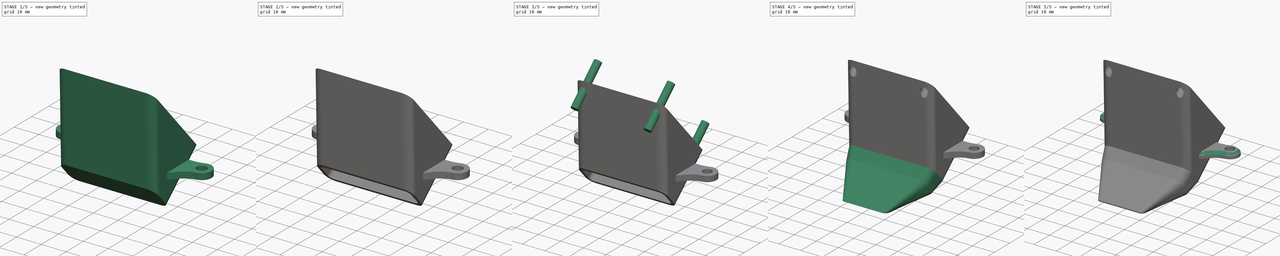
[diagram: build sequence overview — one tinted view per stage of 5, left to right]
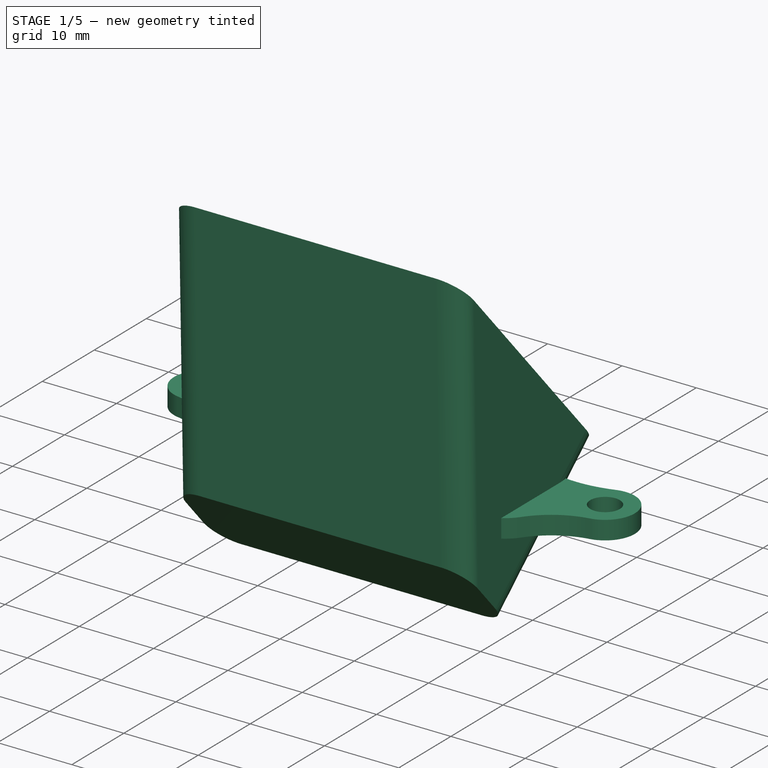
[diagram: stage 1 of 5 — iso view after this stage's code; geometry added in this stage tinted green]
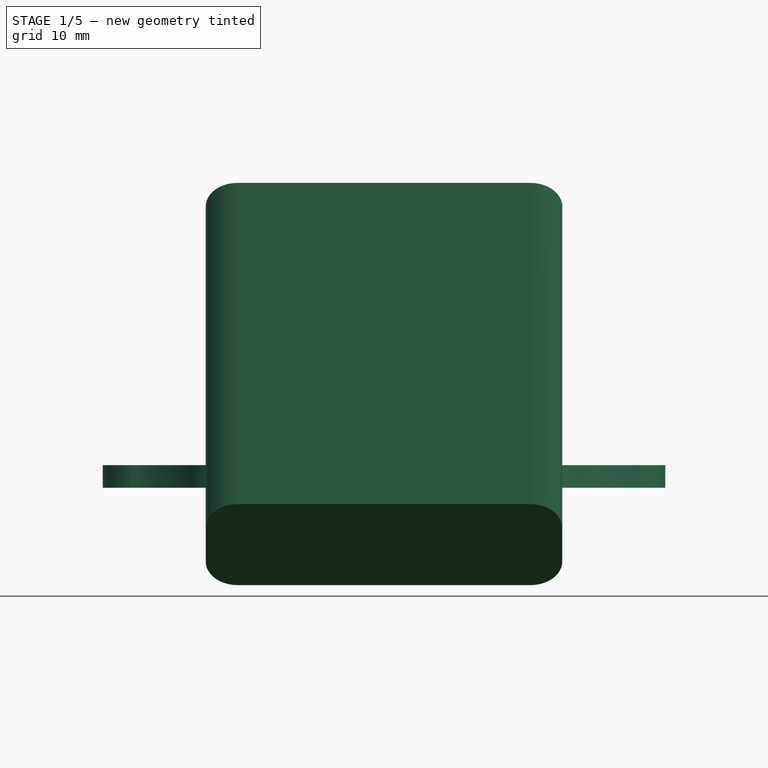
[diagram: stage 1 of 5 — front view after this stage's code; geometry added in this stage tinted green]
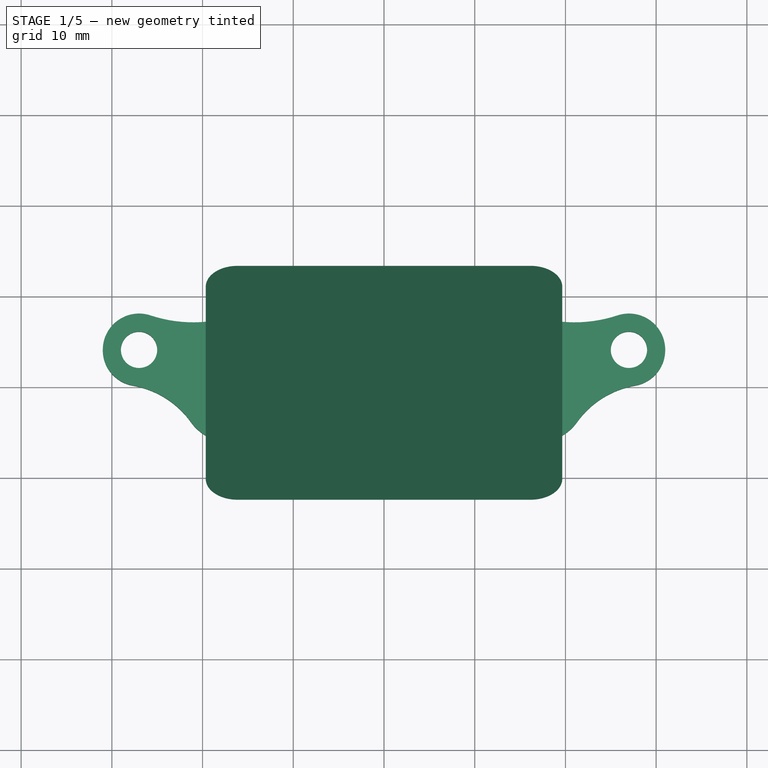
[diagram: stage 1 of 5 — top view after this stage's code; geometry added in this stage tinted green]
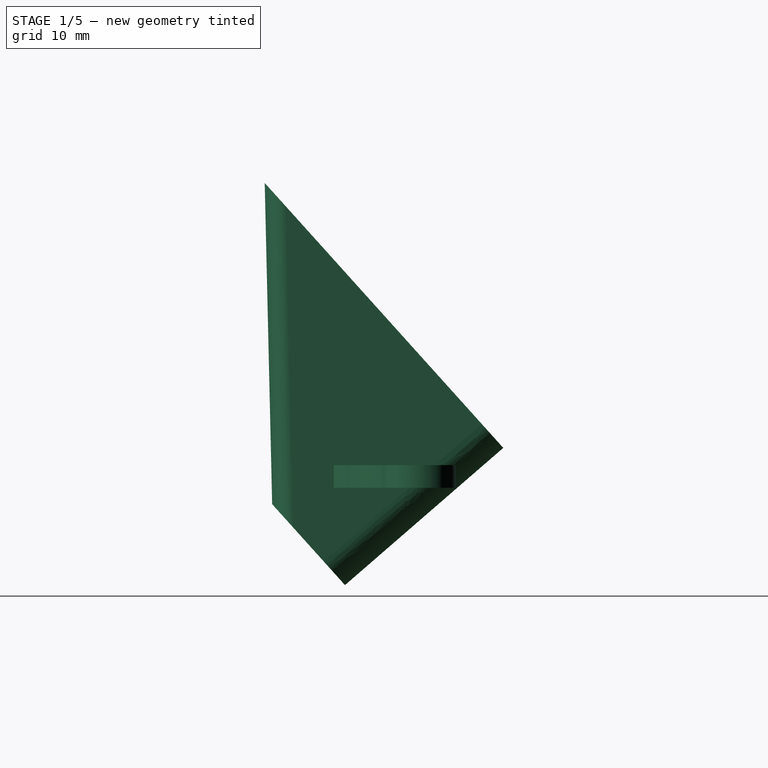
[diagram: stage 1 of 5 — right view after this stage's code; geometry added in this stage tinted green]
FCSTD DOCUMENT  (FreeCAD 0.15R4671 (Git))
Label: FanDuct
License: All rights reserved
LicenseURL: http://en.wikipedia.org/wiki/All_rights_reserved
objects: Sketcher::SketchObject×16, Part::Loft×5, PartDesign::Pad×4, Part::MultiFuse×4, Part::Cut×3, PartDesign::Chamfer×2, Part::MultiCommon×1, PartDesign::Fillet×1
note: 40 computed .brp shape members not serialized (recipe doc carries the construction recipe); baked Part::Feature solids carry a one-line shape summary decoded from their .brp

FEATURE [Sketcher::SketchObject] Sketch001
  Placement = pos=(0,0,74.5) rot=(-1,0,0;0.837758rad)
  sketch-geometry (5):
    g0: LineSegment [constr] StartX=16.15 StartY=16.15 StartZ=0 EndX=-16.15 EndY=16.15 EndZ=0
    g1: ArcOfCircle CenterX=-16.15 CenterY=16.15 CenterZ=0 NormalX=0 NormalY=0 NormalZ=1 Radius=3.4 StartAngle=4.03117 EndAngle=6.96441
    g2: ArcOfCircle CenterX=-15.65 CenterY=15.65 CenterZ=0 NormalX=0 NormalY=0 NormalZ=1 Radius=3.4 StartAngle=0.889573 EndAngle=3.82282
    g3: ArcOfCircle CenterX=16.15 CenterY=16.15 CenterZ=0 NormalX=0 NormalY=0 NormalZ=1 Radius=3.4 StartAngle=2.46037 EndAngle=5.39361
    g4: ArcOfCircle CenterX=15.65 CenterY=15.65 CenterZ=0 NormalX=0 NormalY=0 NormalZ=1 Radius=3.4 StartAngle=5.60196 EndAngle=8.53521
  constraints (18):
    c: Horizontal(g0)
    c: DistanceX(g0) = -32.3
    c: DistanceX(g-1,g0) = -16.15
    c: DistanceY(g-1,g0) = 16.15
    c: Coincident(g1,g0)
    c: Coincident(g2,g1)
    c: Coincident(g2,g1)
    c: Coincident(g3,g0)
    c: Coincident(g4,g3)
    c: Coincident(g4,g3)
    c: DistanceY(g2,g0) = 0.5
    c: DistanceX(g0,g2) = 0.5
    c: DistanceX(g4,g0) = 0.5
    c: DistanceY(g4,g0) = 0.5
    c: Equal(g2,g1)
    c: Equal(g1,g3)
    c: Equal(g3,g4)
    c: Radius(g1) = 3.4
FEATURE [Sketcher::SketchObject] Sketch002
  Placement = pos=(0,0,74.5) rot=(-1,0,0;0.837758rad)
  sketch-geometry (12):
    g0: LineSegment StartX=-16.15 StartY=19.65 StartZ=0 EndX=16.15 EndY=19.65 EndZ=0
    g1: LineSegment StartX=19.65 StartY=16.15 StartZ=0 EndX=19.65 EndY=-16.15 EndZ=0
    g2: LineSegment StartX=16.15 StartY=-19.65 StartZ=0 EndX=-16.15 EndY=-19.65 EndZ=0
    g3: LineSegment StartX=-19.65 StartY=-16.15 StartZ=0 EndX=-19.65 EndY=16.15 EndZ=0
    g4: ArcOfCircle CenterX=-16.15 CenterY=16.15 CenterZ=0 NormalX=0 NormalY=0 NormalZ=1 Radius=3.5 StartAngle=1.5708 EndAngle=3.14159
    g5: ArcOfCircle CenterX=-16.15 CenterY=-16.15 CenterZ=0 NormalX=0 NormalY=0 NormalZ=1 Radius=3.5 StartAngle=3.14159 EndAngle=4.71239
    g6: ArcOfCircle CenterX=16.15 CenterY=-16.15 CenterZ=0 NormalX=0 NormalY=0 NormalZ=1 Radius=3.5 StartAngle=4.71239 EndAngle=6.28319
    g7: ArcOfCircle CenterX=16.15 CenterY=16.15 CenterZ=0 NormalX=0 NormalY=0 NormalZ=1 Radius=3.5 StartAngle=0 EndAngle=1.5708
    g8: LineSegment [constr] StartX=-16.15 StartY=-16.15 StartZ=0 EndX=16.15 EndY=-16.15 EndZ=0
    g9: LineSegment [constr] StartX=16.15 StartY=-16.15 StartZ=0 EndX=16.15 EndY=16.15 EndZ=0
    g10: LineSegment [constr] StartX=16.15 StartY=16.15 StartZ=0 EndX=-16.15 EndY=16.15 EndZ=0
    g11: LineSegment [constr] StartX=-16.15 StartY=16.15 StartZ=0 EndX=-16.15 EndY=-16.15 EndZ=0
  constraints (30):
    c: Horizontal(g0)
    c: Horizontal(g2)
    c: Vertical(g1)
    c: Vertical(g3)
    c: Tangent(g0,g4) = 1.5708
    c: Tangent(g3,g4) = 1.5708
    c: Tangent(g2,g5) = 1.5708
    c: Tangent(g3,g5) = 1.5708
    c: Tangent(g2,g6) = 1.5708
    c: Tangent(g1,g6) = 1.5708
    c: Tangent(g1,g7) = 1.5708
    c: Tangent(g0,g7) = 1.5708
    c: Radius(g4) = 3.5
    c: Radius(g6) = 3.5
    c: Radius(g5) = 3.5
    c: Radius(g7) = 3.5
    c: DistanceY(g4,g5) = -32.3
    c: DistanceX(g4,g7) = 32.3
    c: Coincident(g8,g9)
    c: Coincident(g9,g10)
    c: Coincident(g10,g11)
    c: Coincident(g11,g8)
    c: Horizontal(g8)
    c: Horizontal(g10)
    c: Vertical(g9)
    c: Vertical(g11)
    c: Coincident(g8,g5)
    c: Coincident(g9,g7)
    c: DistanceX(g-1,g4) = -16.15
    c: DistanceY(g-1,g4) = 16.15
FEATURE [Sketcher::SketchObject] Sketch003
  Placement = pos=(0,0,40) rot=(-1,0,0;0.837758rad)
  sketch-geometry (12):
    g0: LineSegment StartX=-16.15 StartY=-6.425 StartZ=0 EndX=16.15 EndY=-6.425 EndZ=0
    g1: LineSegment StartX=19.65 StartY=-9.925 StartZ=0 EndX=19.65 EndY=-14.925 EndZ=0
    g2: LineSegment StartX=16.15 StartY=-18.425 StartZ=0 EndX=-16.15 EndY=-18.425 EndZ=0
    g3: LineSegment StartX=-19.65 StartY=-14.925 StartZ=0 EndX=-19.65 EndY=-9.925 EndZ=0
    g4: ArcOfCircle CenterX=-16.15 CenterY=-9.925 CenterZ=0 NormalX=0 NormalY=0 NormalZ=1 Radius=3.5 StartAngle=1.5708 EndAngle=3.14159
    g5: ArcOfCircle CenterX=-16.15 CenterY=-14.925 CenterZ=0 NormalX=0 NormalY=0 NormalZ=1 Radius=3.5 StartAngle=3.14159 EndAngle=4.71239
    g6: ArcOfCircle CenterX=16.15 CenterY=-14.925 CenterZ=0 NormalX=0 NormalY=0 NormalZ=1 Radius=3.5 StartAngle=4.71239 EndAngle=6.28319
    g7: ArcOfCircle CenterX=16.15 CenterY=-9.925 CenterZ=0 NormalX=0 NormalY=0 NormalZ=1 Radius=3.5 StartAngle=0 EndAngle=1.5708
    g8: LineSegment [constr] StartX=-16.15 StartY=-14.925 StartZ=0 EndX=16.15 EndY=-14.925 EndZ=0
    g9: LineSegment [constr] StartX=16.15 StartY=-14.925 StartZ=0 EndX=16.15 EndY=-9.925 EndZ=0
    g10: LineSegment [constr] StartX=16.15 StartY=-9.925 StartZ=0 EndX=-16.15 EndY=-9.925 EndZ=0
    g11: LineSegment [constr] StartX=-16.15 StartY=-9.925 StartZ=0 EndX=-16.15 EndY=-14.925 EndZ=0
  constraints (30):
    c: Horizontal(g0)
    c: Horizontal(g2)
    c: Vertical(g1)
    c: Vertical(g3)
    c: Tangent(g0,g4) = 1.5708
    c: Tangent(g3,g4) = 1.5708
    c: Tangent(g2,g5) = 1.5708
    c: Tangent(g3,g5) = 1.5708
    c: Tangent(g2,g6) = 1.5708
    c: Tangent(g1,g6) = 1.5708
    c: Tangent(g1,g7) = 1.5708
    c: Tangent(g0,g7) = 1.5708
    c: Radius(g4) = 3.5
    c: Radius(g6) = 3.5
    c: Radius(g5) = 3.5
    c: Radius(g7) = 3.5
    c: DistanceY(g4,g5) = -5
    c: DistanceX(g4,g7) = 32.3
    c: Coincident(g8,g9)
    c: Coincident(g9,g10)
    c: Coincident(g10,g11)
    c: Coincident(g11,g8)
    c: Horizontal(g8)
    c: Horizontal(g10)
    c: Vertical(g9)
    c: Vertical(g11)
    c: Coincident(g8,g5)
    c: Coincident(g9,g7)
    c: DistanceX(g-1,g5) = -16.15
    c: DistanceY(g-1,g4) = -9.925
FEATURE [Part::Loft] Loft  label="OuterOfDuct"
  Closed = false
  Ruled = true
  Sections = -> [Sketch002,Sketch003]
  Solid = true
FEATURE [Sketcher::SketchObject] Sketch004
  Placement = pos=(0,0,74.5) rot=(-1,0,0;0.837758rad)
  sketch-geometry (12):
    g0: LineSegment StartX=-16.15 StartY=18.15 StartZ=0 EndX=16.15 EndY=18.15 EndZ=0
    g1: LineSegment StartX=18.15 StartY=16.15 StartZ=0 EndX=18.15 EndY=-16.15 EndZ=0
    g2: LineSegment StartX=16.15 StartY=-18.15 StartZ=0 EndX=-16.15 EndY=-18.15 EndZ=0
    g3: LineSegment StartX=-18.15 StartY=-16.15 StartZ=0 EndX=-18.15 EndY=16.15 EndZ=0
    g4: ArcOfCircle CenterX=-16.15 CenterY=16.15 CenterZ=0 NormalX=0 NormalY=0 NormalZ=1 Radius=2 StartAngle=1.5708 EndAngle=3.14159
    g5: ArcOfCircle CenterX=-16.15 CenterY=-16.15 CenterZ=0 NormalX=0 NormalY=0 NormalZ=1 Radius=2 StartAngle=3.14159 EndAngle=4.71239
    g6: ArcOfCircle CenterX=16.15 CenterY=-16.15 CenterZ=0 NormalX=0 NormalY=0 NormalZ=1 Radius=2 StartAngle=4.71239 EndAngle=6.28319
    g7: ArcOfCircle CenterX=16.15 CenterY=16.15 CenterZ=0 NormalX=0 NormalY=0 NormalZ=1 Radius=2 StartAngle=0 EndAngle=1.5708
    g8: LineSegment [constr] StartX=-16.15 StartY=-16.15 StartZ=0 EndX=16.15 EndY=-16.15 EndZ=0
    g9: LineSegment [constr] StartX=16.15 StartY=-16.15 StartZ=0 EndX=16.15 EndY=16.15 EndZ=0
    g10: LineSegment [constr] StartX=16.15 StartY=16.15 StartZ=0 EndX=-16.15 EndY=16.15 EndZ=0
    g11: LineSegment [constr] StartX=-16.15 StartY=16.15 StartZ=0 EndX=-16.15 EndY=-16.15 EndZ=0
  constraints (29):
    c: Horizontal(g0)
    c: Horizontal(g2)
    c: Vertical(g1)
    c: Vertical(g3)
    c: Tangent(g0,g4) = 1.5708
    c: Tangent(g3,g4) = 1.5708
    c: Tangent(g2,g5) = 1.5708
    c: Tangent(g3,g5) = 1.5708
    c: Tangent(g2,g6) = 1.5708
    c: Tangent(g1,g6) = 1.5708
    c: Tangent(g1,g7) = 1.5708
    c: Tangent(g0,g7) = 1.5708
    c: Radius(g4) = 2
    c: DistanceY(g4,g5) = -32.3
    c: DistanceX(g4,g7) = 32.3
    c: Coincident(g8,g9)
    c: Coincident(g9,g10)
    c: Coincident(g10,g11)
    c: Coincident(g11,g8)
    c: Horizontal(g8)
    c: Horizontal(g10)
    c: Vertical(g9)
    c: Vertical(g11)
    c: Coincident(g8,g5)
    c: Coincident(g9,g7)
    c: Equal(g5,g6)
    c: Coincident(g10,g4)
    c: DistanceX(g-1,g5) = -16.15
    c: DistanceY(g-1,g4) = 16.15
FEATURE [Sketcher::SketchObject] Sketch005
  Placement = pos=(0,0,40) rot=(-1,0,0;0.837758rad)
  sketch-geometry (12):
    g0: LineSegment StartX=-16.15 StartY=-7.925 StartZ=0 EndX=16.15 EndY=-7.925 EndZ=0
    g1: LineSegment StartX=18.15 StartY=-9.925 StartZ=0 EndX=18.15 EndY=-14.925 EndZ=0
    g2: LineSegment StartX=16.15 StartY=-16.925 StartZ=0 EndX=-16.15 EndY=-16.925 EndZ=0
    g3: LineSegment StartX=-18.15 StartY=-14.925 StartZ=0 EndX=-18.15 EndY=-9.925 EndZ=0
    g4: ArcOfCircle CenterX=-16.15 CenterY=-9.925 CenterZ=0 NormalX=0 NormalY=0 NormalZ=1 Radius=2 StartAngle=1.5708 EndAngle=3.14159
    g5: ArcOfCircle CenterX=-16.15 CenterY=-14.925 CenterZ=0 NormalX=0 NormalY=0 NormalZ=1 Radius=2 StartAngle=3.14159 EndAngle=4.71239
    g6: ArcOfCircle CenterX=16.15 CenterY=-14.925 CenterZ=0 NormalX=0 NormalY=0 NormalZ=1 Radius=2 StartAngle=4.71239 EndAngle=6.28319
    g7: ArcOfCircle CenterX=16.15 CenterY=-9.925 CenterZ=0 NormalX=0 NormalY=0 NormalZ=1 Radius=2 StartAngle=0 EndAngle=1.5708
    g8: LineSegment [constr] StartX=-16.15 StartY=-9.925 StartZ=0 EndX=16.15 EndY=-9.925 EndZ=0
    g9: LineSegment [constr] StartX=16.15 StartY=-9.925 StartZ=0 EndX=16.15 EndY=-14.925 EndZ=0
    g10: LineSegment [constr] StartX=16.15 StartY=-14.925 StartZ=0 EndX=-16.15 EndY=-14.925 EndZ=0
    g11: LineSegment [constr] StartX=-16.15 StartY=-14.925 StartZ=0 EndX=-16.15 EndY=-9.925 EndZ=0
  constraints (30):
    c: Horizontal(g0)
    c: Horizontal(g2)
    c: Vertical(g1)
    c: Vertical(g3)
    c: Tangent(g0,g4) = 1.5708
    c: Tangent(g3,g4) = 1.5708
    c: Tangent(g2,g5) = 1.5708
    c: Tangent(g3,g5) = 1.5708
    c: Tangent(g2,g6) = 1.5708
    c: Tangent(g1,g6) = 1.5708
    c: Tangent(g1,g7) = 1.5708
    c: Tangent(g0,g7) = 1.5708
    c: Radius(g4) = 2
    c: DistanceY(g4,g5) = -5
    c: DistanceX(g4,g7) = 32.3
    c: Equal(g5,g4)
    c: Equal(g6,g7)
    c: Equal(g5,g6)
    c: Coincident(g8,g9)
    c: Coincident(g9,g10)
    c: Coincident(g10,g11)
    c: Coincident(g11,g8)
    c: Horizontal(g8)
    c: Horizontal(g10)
    c: Vertical(g9)
    c: Vertical(g11)
    c: Coincident(g4,g8)
    c: Coincident(g9,g6)
    c: DistanceY(g-1,g4) = -9.925
    c: DistanceX(g-1,g5) = -16.15
FEATURE [Part::Loft] Loft001  label="InnerOfDuct"
  Closed = false
  Ruled = true
  Sections = -> [Sketch004,Sketch005]
  Solid = true
FEATURE [Sketcher::SketchObject] Sketch
  Placement = pos=(0,0,55.5) rot=(0,0,1;0rad)
  sketch-geometry (12):
    g0: Circle CenterX=-27 CenterY=3.925 CenterZ=0 NormalX=0 NormalY=0 NormalZ=1 Radius=2
    g1: ArcOfCircle CenterX=-17 CenterY=-1 CenterZ=0 NormalX=0 NormalY=0 NormalZ=1 Radius=5.25 StartAngle=3.76205 EndAngle=4.71239
    g2: ArcOfCircle CenterX=-29.4076 CenterY=-9.86642 CenterZ=0 NormalX=0 NormalY=0 NormalZ=1 Radius=10 StartAngle=0.620454 EndAngle=1.39796
    g3: ArcOfCircle CenterX=-27 CenterY=3.925 CenterZ=0 NormalX=0 NormalY=0 NormalZ=1 Radius=4 StartAngle=1.24988 EndAngle=4.53956
    g4: LineSegment StartX=-17 StartY=-6.25 StartZ=0 EndX=-17 EndY=7.5 EndZ=0
    g5: ArcOfCircle CenterX=-21.0067 CenterY=21.955 CenterZ=0 NormalX=0 NormalY=0 NormalZ=1 Radius=15 StartAngle=4.39147 EndAngle=4.98278
    g6: Circle CenterX=27 CenterY=3.925 CenterZ=0 NormalX=0 NormalY=0 NormalZ=1 Radius=2
    g7: ArcOfCircle CenterX=27 CenterY=3.925 CenterZ=0 NormalX=0 NormalY=0 NormalZ=1 Radius=4 StartAngle=4.88522 EndAngle=8.1749
    g8: LineSegment StartX=17 StartY=-6.25 StartZ=0 EndX=17 EndY=7.5 EndZ=0
    g9: ArcOfCircle CenterX=17 CenterY=-1 CenterZ=0 NormalX=0 NormalY=0 NormalZ=1 Radius=5.25 StartAngle=4.71239 EndAngle=5.66273
    g10: ArcOfCircle CenterX=29.4076 CenterY=-9.86642 CenterZ=0 NormalX=0 NormalY=0 NormalZ=1 Radius=10 StartAngle=1.74363 EndAngle=2.52114
    g11: ArcOfCircle CenterX=21.0067 CenterY=21.955 CenterZ=0 NormalX=0 NormalY=0 NormalZ=1 Radius=15 StartAngle=4.44199 EndAngle=5.03331
  constraints (42):
    c: Radius(g0) = 2
    c: DistanceX(g-1,g0) = -27
    c: DistanceY(g-1,g0) = 3.925
    c: Coincident(g2,g1)
    c: Coincident(g3,g0)
    c: Coincident(g3,g2)
    c: Radius(g3) = 4
    c: DistanceX(g-1,g1) = -17
    c: DistanceY(g-1,g1) = -1
    c: Radius(g1) = 5.25
    c: Radius(g2) = 10
    c: Coincident(g4,g1)
    c: Vertical(g4)
    c: PointOnObject(g1,g4)
    c: Coincident(g5,g3)
    c: Coincident(g5,g4)
    c: Tangent(g2,g3)
    c: Tangent(g1,g2)
    c: Tangent(g5,g3)
    c: DistanceY(g-1,g4) = 7.5
    c: Radius(g5) = 15
    c: Coincident(g7,g6)
    c: Vertical(g8)
    c: PointOnObject(g9,g8)
    c: Coincident(g9,g8)
    c: Coincident(g10,g9)
    c: Coincident(g10,g7)
    c: Coincident(g11,g8)
    c: Coincident(g11,g7)
    c: Equal(g3,g7)
    c: Equal(g0,g6)
    c: Equal(g9,g1)
    c: Equal(g10,g2)
    c: Equal(g11,g5)
    c: Tangent(g11,g7)
    c: Tangent(g10,g7)
    c: Tangent(g9,g10)
    c: DistanceX(g-1,g8) = 17
    c: DistanceY(g-1,g9) = -1
    c: DistanceY(g-1,g6) = 3.925
    c: DistanceX(g-1,g6) = 27
    c: DistanceY(g-1,g8) = 7.5
FEATURE [PartDesign::Pad] Pad001  label="EffectorConnection"
  Length = 2.5
  Length2 = 100
  Placement = pos=(0,0,55.5) rot=(0,0,1;0rad)
  Sketch = -> Sketch
  Type = 0
FEATURE [Part::MultiFuse] Fusion  label="OuterAndEffector"
  Shapes = -> [Pad001,Loft]
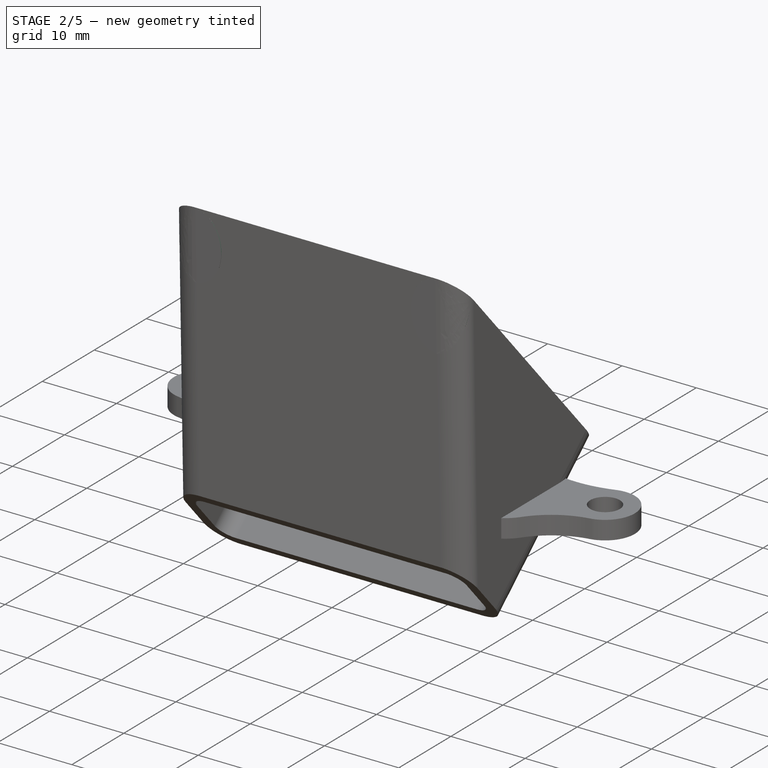
[diagram: stage 2 of 5 — iso view after this stage's code; geometry added in this stage tinted green]
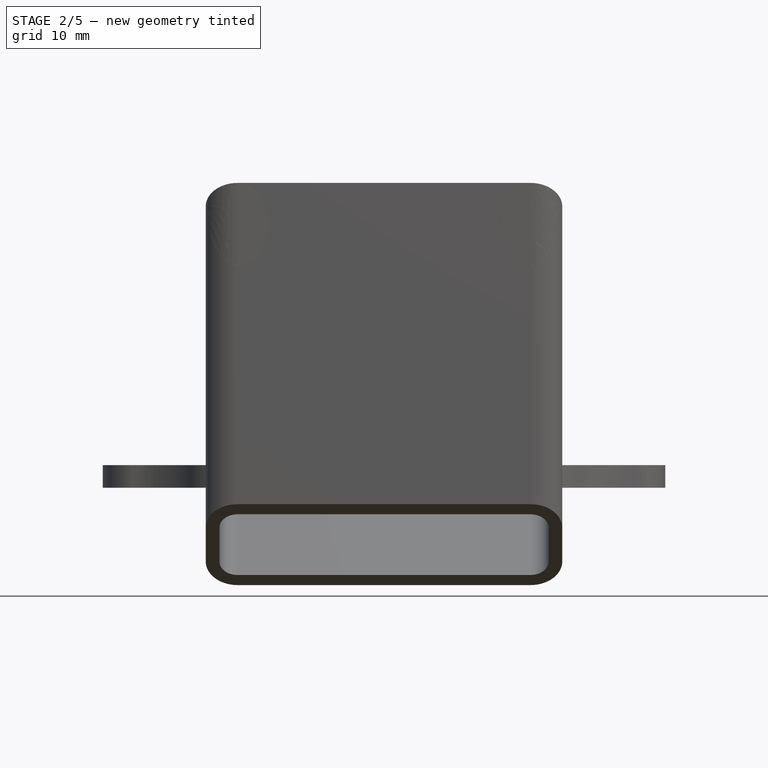
[diagram: stage 2 of 5 — front view after this stage's code; geometry added in this stage tinted green]
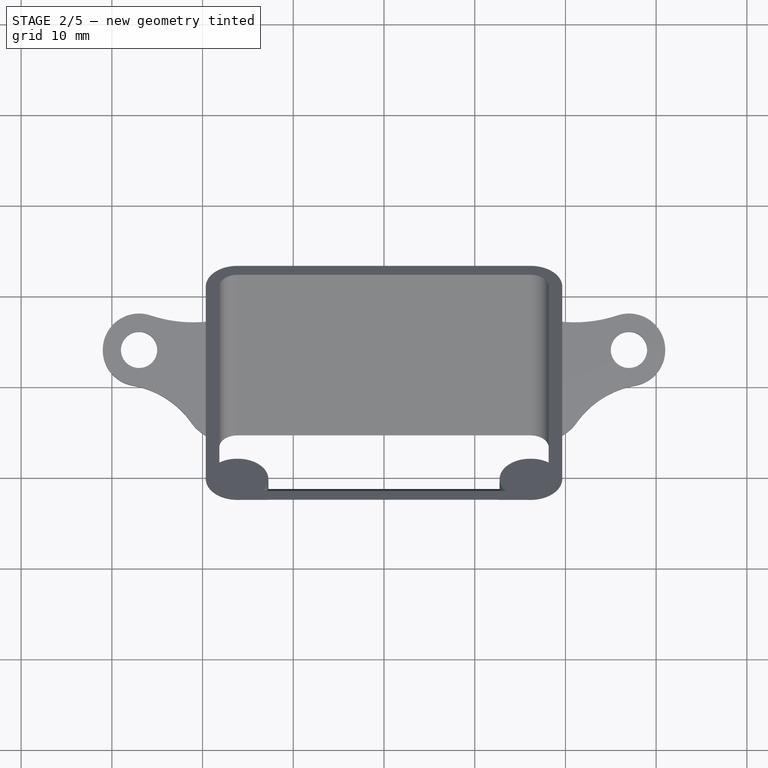
[diagram: stage 2 of 5 — top view after this stage's code; geometry added in this stage tinted green]
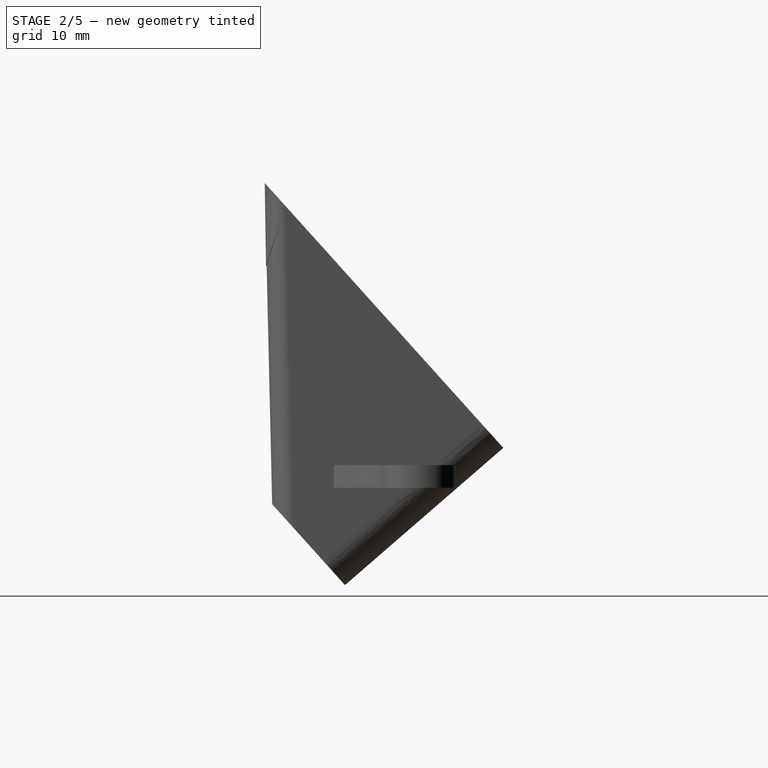
[diagram: stage 2 of 5 — right view after this stage's code; geometry added in this stage tinted green]
FEATURE [Sketcher::SketchObject] Sketch006
  Placement = pos=(0,0,74.5) rot=(-1,0,0;0.837758rad)
  sketch-geometry (3):
    g0: Circle CenterX=-16.15 CenterY=-16.15 CenterZ=0 NormalX=0 NormalY=0 NormalZ=1 Radius=3.4
    g1: Circle CenterX=16.15 CenterY=-16.15 CenterZ=0 NormalX=0 NormalY=0 NormalZ=1 Radius=3.4
    g2: LineSegment [constr] StartX=16.15 StartY=-16.15 StartZ=0 EndX=-16.15 EndY=-16.15 EndZ=0
  constraints (8):
    c: Radius(g0) = 3.4
    c: Horizontal(g2)
    c: Coincident(g2,g0)
    c: Equal(g1,g0)
    c: DistanceX(g2) = -32.3
    c: DistanceX(g-1,g0) = -16.15
    c: Coincident(g1,g2)
    c: DistanceY(g-1,g0) = -16.15
FEATURE [PartDesign::Pad] Pad002  label="AngledFanPadsConstruction"
  Length = 10
  Length2 = 100
  Placement = pos=(0,0,74.5) rot=(-1,0,0;0.837758rad)
  Reversed = true
  Sketch = -> Sketch006
  Type = 0
FEATURE [Sketcher::SketchObject] Sketch016
  Placement = pos=(0,0,74.5) rot=(-1,0,0;0.837758rad)
  sketch-geometry (12):
    g0: LineSegment StartX=-16.15 StartY=19.65 StartZ=0 EndX=16.15 EndY=19.65 EndZ=0
    g1: LineSegment StartX=19.65 StartY=16.15 StartZ=0 EndX=19.65 EndY=-16.15 EndZ=0
    g2: LineSegment StartX=16.15 StartY=-19.65 StartZ=0 EndX=-16.15 EndY=-19.65 EndZ=0
    g3: LineSegment StartX=-19.65 StartY=-16.15 StartZ=0 EndX=-19.65 EndY=16.15 EndZ=0
    g4: ArcOfCircle CenterX=-16.15 CenterY=16.15 CenterZ=0 NormalX=0 NormalY=0 NormalZ=1 Radius=3.5 StartAngle=1.5708 EndAngle=3.14159
    g5: ArcOfCircle CenterX=-16.15 CenterY=-16.15 CenterZ=0 NormalX=0 NormalY=0 NormalZ=1 Radius=3.5 StartAngle=3.14159 EndAngle=4.71239
    g6: ArcOfCircle CenterX=16.15 CenterY=-16.15 CenterZ=0 NormalX=0 NormalY=0 NormalZ=1 Radius=3.5 StartAngle=4.71239 EndAngle=6.28319
    g7: ArcOfCircle CenterX=16.15 CenterY=16.15 CenterZ=0 NormalX=0 NormalY=0 NormalZ=1 Radius=3.5 StartAngle=0 EndAngle=1.5708
    g8: LineSegment [constr] StartX=-16.15 StartY=-16.15 StartZ=0 EndX=16.15 EndY=-16.15 EndZ=0
    g9: LineSegment [constr] StartX=16.15 StartY=-16.15 StartZ=0 EndX=16.15 EndY=16.15 EndZ=0
    g10: LineSegment [constr] StartX=16.15 StartY=16.15 StartZ=0 EndX=-16.15 EndY=16.15 EndZ=0
    g11: LineSegment [constr] StartX=-16.15 StartY=16.15 StartZ=0 EndX=-16.15 EndY=-16.15 EndZ=0
  constraints (30):
    c: Horizontal(g0)
    c: Horizontal(g2)
    c: Vertical(g1)
    c: Vertical(g3)
    c: Tangent(g0,g4) = 1.5708
    c: Tangent(g3,g4) = 1.5708
    c: Tangent(g2,g5) = 1.5708
    c: Tangent(g3,g5) = 1.5708
    c: Tangent(g2,g6) = 1.5708
    c: Tangent(g1,g6) = 1.5708
    c: Tangent(g1,g7) = 1.5708
    c: Tangent(g0,g7) = 1.5708
    c: Radius(g4) = 3.5
    c: Radius(g6) = 3.5
    c: Radius(g5) = 3.5
    c: Radius(g7) = 3.5
    c: DistanceY(g4,g5) = -32.3
    c: DistanceX(g4,g7) = 32.3
    c: Coincident(g8,g9)
    c: Coincident(g9,g10)
    c: Coincident(g10,g11)
    c: Coincident(g11,g8)
    c: Horizontal(g8)
    c: Horizontal(g10)
    c: Vertical(g9)
    c: Vertical(g11)
    c: Coincident(g8,g5)
    c: Coincident(g9,g7)
    c: DistanceX(g-1,g4) = -16.15
    c: DistanceY(g-1,g4) = 16.15
FEATURE [Sketcher::SketchObject] Sketch017
  Placement = pos=(0,0,40) rot=(-1,0,0;0.837758rad)
  sketch-geometry (12):
    g0: LineSegment StartX=-16.15 StartY=-6.85 StartZ=0 EndX=16.15 EndY=-6.85 EndZ=0
    g1: LineSegment StartX=19.65 StartY=-10.35 StartZ=0 EndX=19.65 EndY=-15.35 EndZ=0
    g2: LineSegment StartX=16.15 StartY=-18.85 StartZ=0 EndX=-16.15 EndY=-18.85 EndZ=0
    g3: LineSegment StartX=-19.65 StartY=-15.35 StartZ=0 EndX=-19.65 EndY=-10.35 EndZ=0
    g4: ArcOfCircle CenterX=-16.15 CenterY=-10.35 CenterZ=0 NormalX=0 NormalY=0 NormalZ=1 Radius=3.5 StartAngle=1.5708 EndAngle=3.14159
    g5: ArcOfCircle CenterX=-16.15 CenterY=-15.35 CenterZ=0 NormalX=0 NormalY=0 NormalZ=1 Radius=3.5 StartAngle=3.14159 EndAngle=4.71239
    g6: ArcOfCircle CenterX=16.15 CenterY=-15.35 CenterZ=0 NormalX=0 NormalY=0 NormalZ=1 Radius=3.5 StartAngle=4.71239 EndAngle=6.28319
    g7: ArcOfCircle CenterX=16.15 CenterY=-10.35 CenterZ=0 NormalX=0 NormalY=0 NormalZ=1 Radius=3.5 StartAngle=0 EndAngle=1.5708
    g8: LineSegment [constr] StartX=-16.15 StartY=-15.35 StartZ=0 EndX=16.15 EndY=-15.35 EndZ=0
    g9: LineSegment [constr] StartX=16.15 StartY=-15.35 StartZ=0 EndX=16.15 EndY=-10.35 EndZ=0
    g10: LineSegment [constr] StartX=16.15 StartY=-10.35 StartZ=0 EndX=-16.15 EndY=-10.35 EndZ=0
    g11: LineSegment [constr] StartX=-16.15 StartY=-10.35 StartZ=0 EndX=-16.15 EndY=-15.35 EndZ=0
  constraints (30):
    c: Horizontal(g0)
    c: Horizontal(g2)
    c: Vertical(g1)
    c: Vertical(g3)
    c: Tangent(g0,g4) = 1.5708
    c: Tangent(g3,g4) = 1.5708
    c: Tangent(g2,g5) = 1.5708
    c: Tangent(g3,g5) = 1.5708
    c: Tangent(g2,g6) = 1.5708
    c: Tangent(g1,g6) = 1.5708
    c: Tangent(g1,g7) = 1.5708
    c: Tangent(g0,g7) = 1.5708
    c: Radius(g4) = 3.5
    c: Radius(g6) = 3.5
    c: Radius(g5) = 3.5
    c: Radius(g7) = 3.5
    c: DistanceY(g4,g5) = -5
    c: DistanceX(g4,g7) = 32.3
    c: Coincident(g8,g9)
    c: Coincident(g9,g10)
    c: Coincident(g10,g11)
    c: Coincident(g11,g8)
    c: Horizontal(g8)
    c: Horizontal(g10)
    c: Vertical(g9)
    c: Vertical(g11)
    c: Coincident(g8,g5)
    c: Coincident(g9,g7)
    c: DistanceX(g-1,g5) = -16.15
    c: DistanceY(g-1,g4) = -10.35
FEATURE [Part::Loft] Loft004  label="OuterOfDuctForAngledFanPads"
  Closed = false
  Ruled = true
  Sections = -> [Sketch016,Sketch017]
  Solid = true
FEATURE [Part::MultiCommon] Common  label="AngledFanPads"
  Shapes = -> [Loft004,Pad002]
FEATURE [Part::Cut] Cut  label="Duct"
  Base = -> Fusion
  Tool = -> Loft001
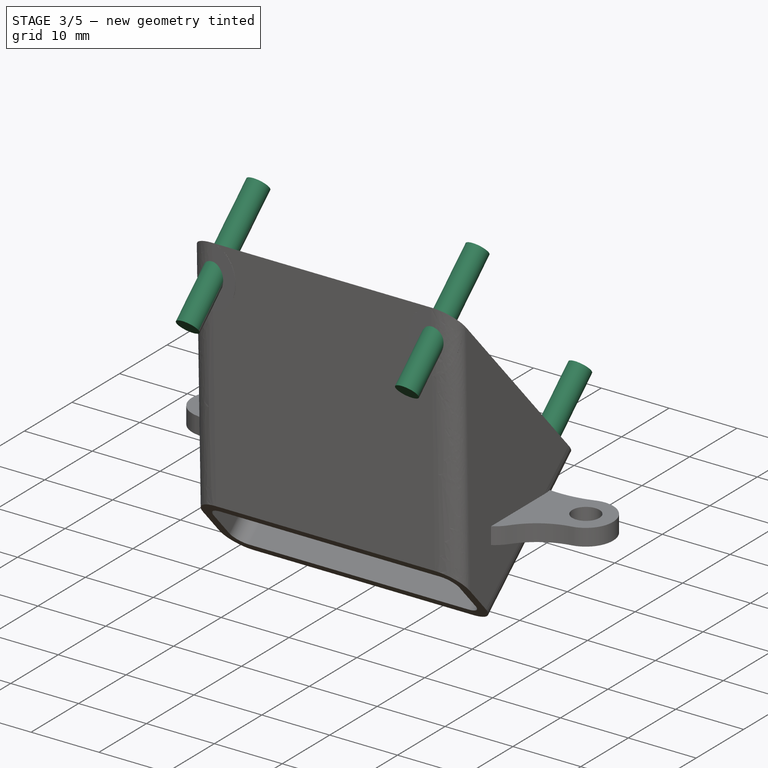
[diagram: stage 3 of 5 — iso view after this stage's code; geometry added in this stage tinted green]
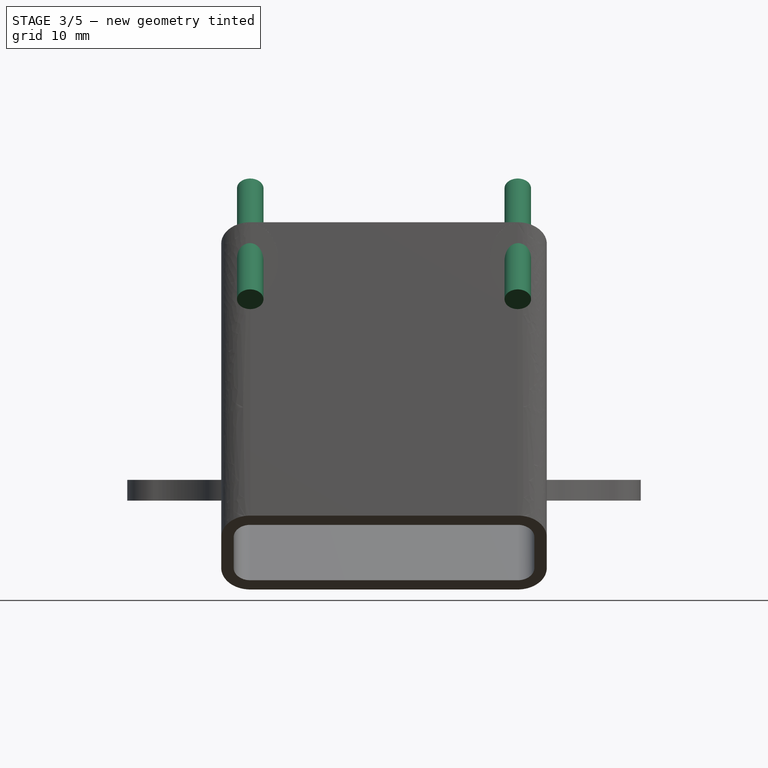
[diagram: stage 3 of 5 — front view after this stage's code; geometry added in this stage tinted green]
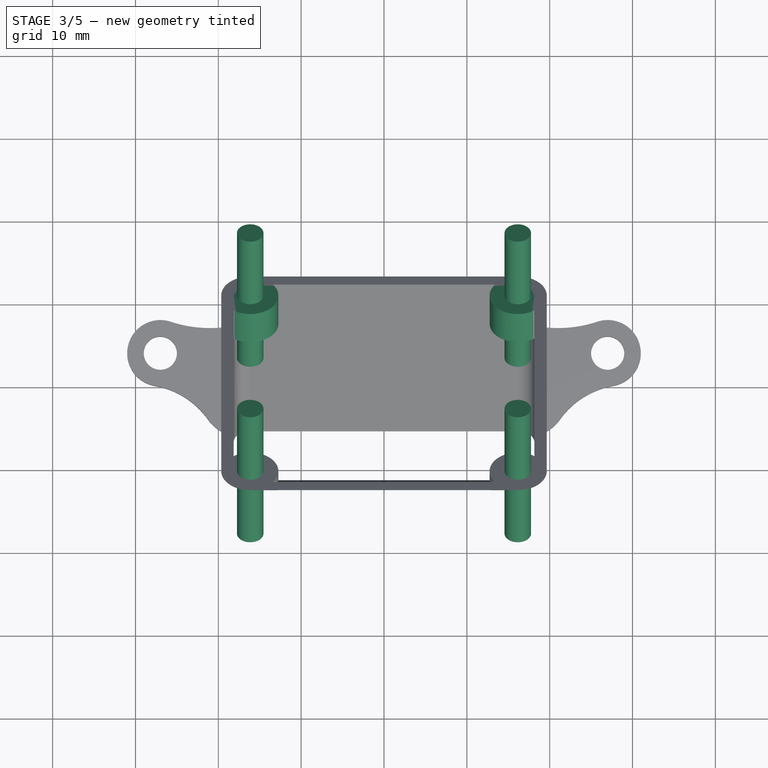
[diagram: stage 3 of 5 — top view after this stage's code; geometry added in this stage tinted green]
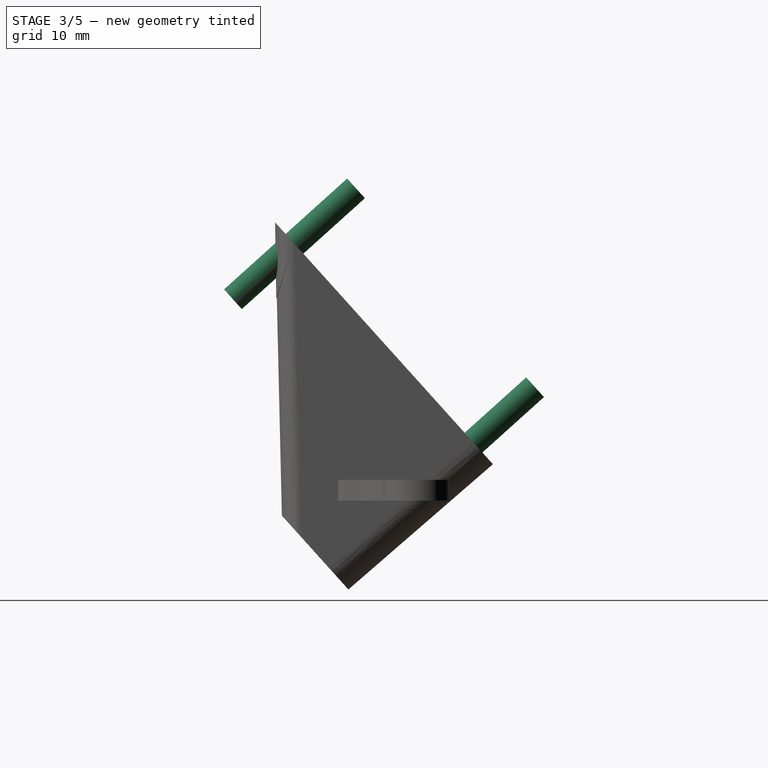
[diagram: stage 3 of 5 — right view after this stage's code; geometry added in this stage tinted green]
FEATURE [PartDesign::Pad] Pad  label="FlatFanPads"
  Length = 4.5
  Length2 = 100
  Placement = pos=(0,0,74.5) rot=(-1,0,0;0.837758rad)
  Reversed = true
  Sketch = -> Sketch001
  Type = 0
FEATURE [Sketcher::SketchObject] Sketch007
  Placement = pos=(0,0,74.5) rot=(-1,0,0;0.837758rad)
  sketch-geometry (6):
    g0: Circle CenterX=-16.15 CenterY=-16.15 CenterZ=0 NormalX=0 NormalY=0 NormalZ=1 Radius=1.6
    g1: Circle CenterX=16.15 CenterY=-16.15 CenterZ=0 NormalX=0 NormalY=0 NormalZ=1 Radius=1.6
    g2: LineSegment [constr] StartX=16.15 StartY=-16.15 StartZ=0 EndX=-16.15 EndY=-16.15 EndZ=0
    g3: Circle CenterX=-16.15 CenterY=16.15 CenterZ=0 NormalX=0 NormalY=0 NormalZ=1 Radius=1.6
    g4: Circle CenterX=16.15 CenterY=16.15 CenterZ=0 NormalX=0 NormalY=0 NormalZ=1 Radius=1.6
    g5: LineSegment [constr] StartX=-16.15 StartY=16.15 StartZ=0 EndX=16.15 EndY=16.15 EndZ=0
  constraints (16):
    c: Radius(g0) = 1.6
    c: Horizontal(g2)
    c: Coincident(g2,g0)
    c: Equal(g1,g0)
    c: DistanceX(g2) = -32.3
    c: DistanceX(g-1,g0) = -16.15
    c: Coincident(g1,g2)
    c: DistanceY(g-1,g0) = -16.15
    c: Coincident(g5,g3)
    c: Coincident(g5,g4)
    c: Horizontal(g5)
    c: Equal(g5,g2)
    c: Equal(g3,g4)
    c: Equal(g4,g1)
    c: DistanceX(g-1,g3) = -16.15
    c: DistanceY(g-1,g3) = 16.15
FEATURE [PartDesign::Pad] Pad003  label="HoleCutOuts"
  Length = 10
  Length2 = 10
  Placement = pos=(0,0,74.5) rot=(-1,0,0;0.837758rad)
  Reversed = true
  Sketch = -> Sketch007
  Type = 4
FEATURE [Part::MultiFuse] Fusion001  label="FanPads"
  Shapes = -> [Common,Pad]
FEATURE [Part::MultiFuse] Fusion002  label="DuctWithPadsNoHoles"
  Shapes = -> [Fusion001,Cut]
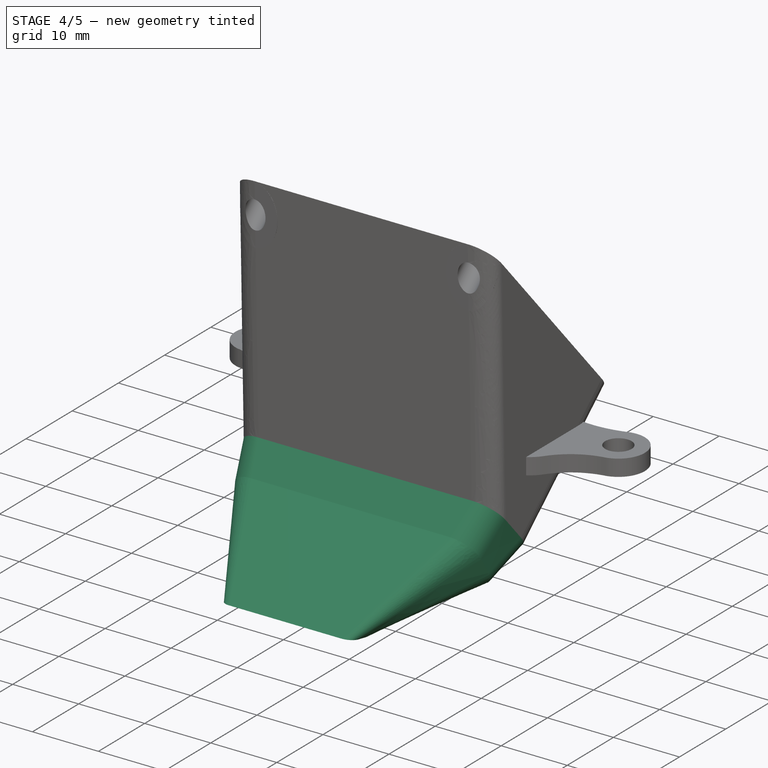
[diagram: stage 4 of 5 — iso view after this stage's code; geometry added in this stage tinted green]
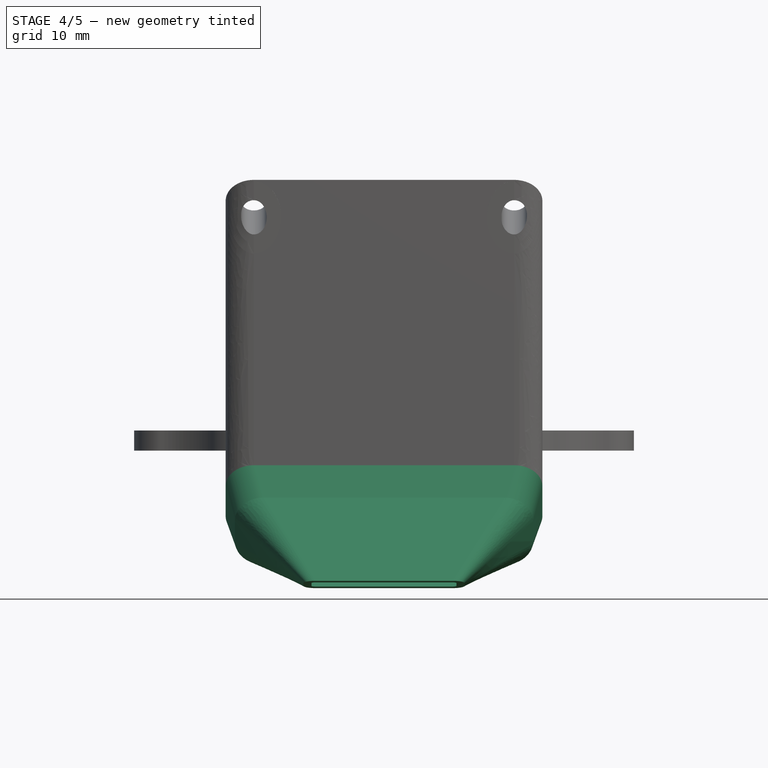
[diagram: stage 4 of 5 — front view after this stage's code; geometry added in this stage tinted green]
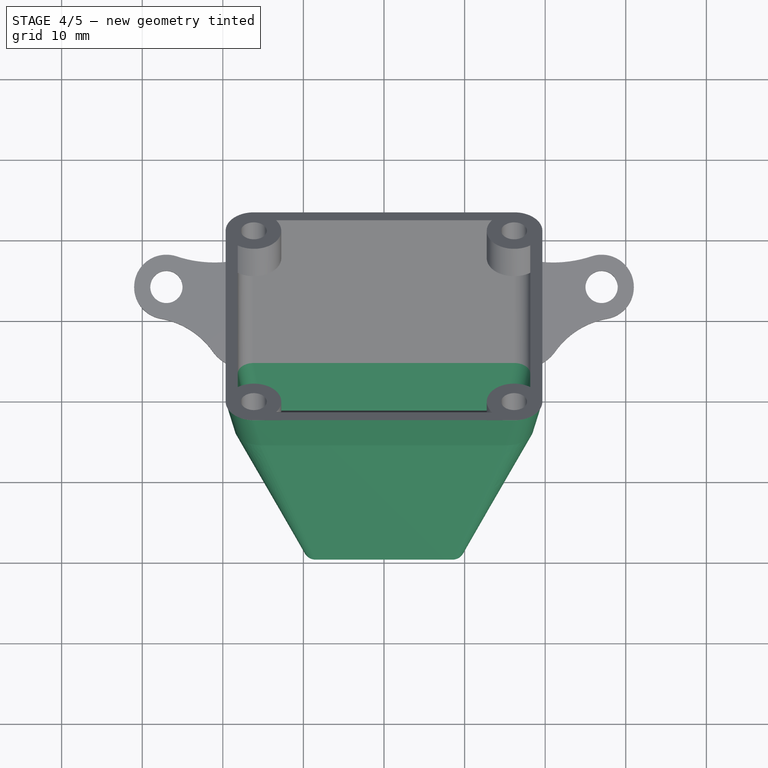
[diagram: stage 4 of 5 — top view after this stage's code; geometry added in this stage tinted green]
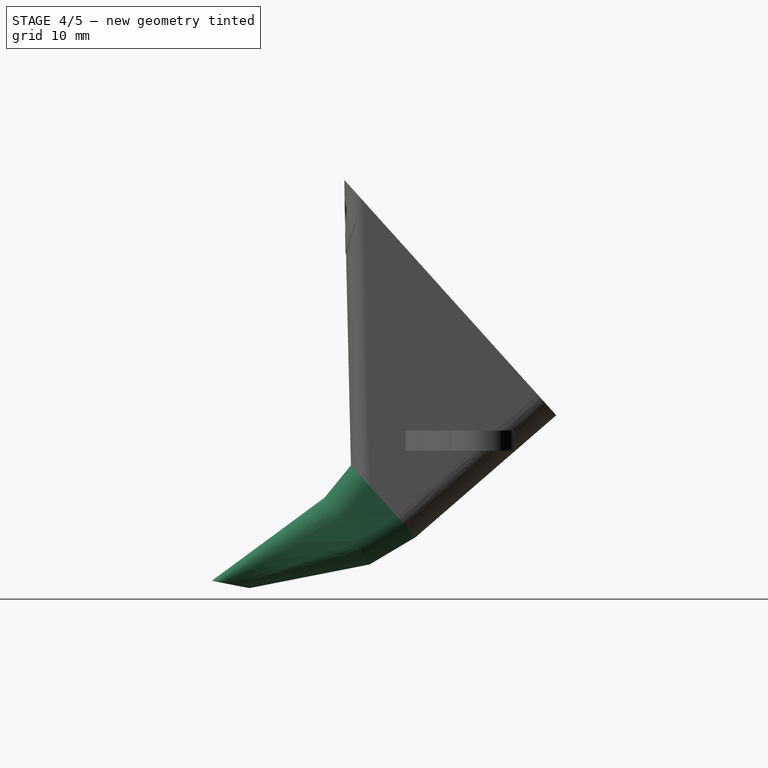
[diagram: stage 4 of 5 — right view after this stage's code; geometry added in this stage tinted green]
FEATURE [Sketcher::SketchObject] Sketch009
  Placement = pos=(0,0,40) rot=(-1,0,0;0.837758rad)
  sketch-geometry (12):
    g0: LineSegment StartX=-16.15 StartY=-7.925 StartZ=0 EndX=16.15 EndY=-7.925 EndZ=0
    g1: LineSegment StartX=18.15 StartY=-9.925 StartZ=0 EndX=18.15 EndY=-14.925 EndZ=0
    g2: LineSegment StartX=16.15 StartY=-16.925 StartZ=0 EndX=-16.15 EndY=-16.925 EndZ=0
    g3: LineSegment StartX=-18.15 StartY=-14.925 StartZ=0 EndX=-18.15 EndY=-9.925 EndZ=0
    g4: ArcOfCircle CenterX=-16.15 CenterY=-9.925 CenterZ=0 NormalX=0 NormalY=0 NormalZ=1 Radius=2 StartAngle=1.5708 EndAngle=3.14159
    g5: ArcOfCircle CenterX=-16.15 CenterY=-14.925 CenterZ=0 NormalX=0 NormalY=0 NormalZ=1 Radius=2 StartAngle=3.14159 EndAngle=4.71239
    g6: ArcOfCircle CenterX=16.15 CenterY=-14.925 CenterZ=0 NormalX=0 NormalY=0 NormalZ=1 Radius=2 StartAngle=4.71239 EndAngle=6.28319
    g7: ArcOfCircle CenterX=16.15 CenterY=-9.925 CenterZ=0 NormalX=0 NormalY=0 NormalZ=1 Radius=2 StartAngle=0 EndAngle=1.5708
    g8: LineSegment [constr] StartX=-16.15 StartY=-9.925 StartZ=0 EndX=16.15 EndY=-9.925 EndZ=0
    g9: LineSegment [constr] StartX=16.15 StartY=-9.925 StartZ=0 EndX=16.15 EndY=-14.925 EndZ=0
    g10: LineSegment [constr] StartX=16.15 StartY=-14.925 StartZ=0 EndX=-16.15 EndY=-14.925 EndZ=0
    g11: LineSegment [constr] StartX=-16.15 StartY=-14.925 StartZ=0 EndX=-16.15 EndY=-9.925 EndZ=0
  constraints (30):
    c: Horizontal(g0)
    c: Horizontal(g2)
    c: Vertical(g1)
    c: Vertical(g3)
    c: Tangent(g0,g4) = 1.5708
    c: Tangent(g3,g4) = 1.5708
    c: Tangent(g2,g5) = 1.5708
    c: Tangent(g3,g5) = 1.5708
    c: Tangent(g2,g6) = 1.5708
    c: Tangent(g1,g6) = 1.5708
    c: Tangent(g1,g7) = 1.5708
    c: Tangent(g0,g7) = 1.5708
    c: Radius(g4) = 2
    c: DistanceY(g4,g5) = -5
    c: DistanceX(g4,g7) = 32.3
    c: Equal(g5,g4)
    c: Equal(g6,g7)
    c: Equal(g5,g6)
    c: Coincident(g8,g9)
    c: Coincident(g9,g10)
    c: Coincident(g10,g11)
    c: Coincident(g11,g8)
    c: Horizontal(g8)
    c: Horizontal(g10)
    c: Vertical(g9)
    c: Vertical(g11)
    c: Coincident(g4,g8)
    c: Coincident(g9,g6)
    c: DistanceY(g-1,g4) = -9.925
    c: DistanceX(g-1,g5) = -16.15
FEATURE [Sketcher::SketchObject] Sketch010
  Placement = pos=(0,0,40) rot=(-1,0,0;0.837758rad)
  sketch-geometry (12):
    g0: LineSegment StartX=-16.15 StartY=-6.425 StartZ=0 EndX=16.15 EndY=-6.425 EndZ=0
    g1: LineSegment StartX=19.65 StartY=-9.925 StartZ=0 EndX=19.65 EndY=-14.925 EndZ=0
    g2: LineSegment StartX=16.15 StartY=-18.425 StartZ=0 EndX=-16.15 EndY=-18.425 EndZ=0
    g3: LineSegment StartX=-19.65 StartY=-14.925 StartZ=0 EndX=-19.65 EndY=-9.925 EndZ=0
    g4: ArcOfCircle CenterX=-16.15 CenterY=-9.925 CenterZ=0 NormalX=0 NormalY=0 NormalZ=1 Radius=3.5 StartAngle=1.5708 EndAngle=3.14159
    g5: ArcOfCircle CenterX=-16.15 CenterY=-14.925 CenterZ=0 NormalX=0 NormalY=0 NormalZ=1 Radius=3.5 StartAngle=3.14159 EndAngle=4.71239
    g6: ArcOfCircle CenterX=16.15 CenterY=-14.925 CenterZ=0 NormalX=0 NormalY=0 NormalZ=1 Radius=3.5 StartAngle=4.71239 EndAngle=6.28319
    g7: ArcOfCircle CenterX=16.15 CenterY=-9.925 CenterZ=0 NormalX=0 NormalY=0 NormalZ=1 Radius=3.5 StartAngle=0 EndAngle=1.5708
    g8: LineSegment [constr] StartX=-16.15 StartY=-14.925 StartZ=0 EndX=16.15 EndY=-14.925 EndZ=0
    g9: LineSegment [constr] StartX=16.15 StartY=-14.925 StartZ=0 EndX=16.15 EndY=-9.925 EndZ=0
    g10: LineSegment [constr] StartX=16.15 StartY=-9.925 StartZ=0 EndX=-16.15 EndY=-9.925 EndZ=0
    g11: LineSegment [constr] StartX=-16.15 StartY=-9.925 StartZ=0 EndX=-16.15 EndY=-14.925 EndZ=0
  constraints (30):
    c: Horizontal(g0)
    c: Horizontal(g2)
    c: Vertical(g1)
    c: Vertical(g3)
    c: Tangent(g0,g4) = 1.5708
    c: Tangent(g3,g4) = 1.5708
    c: Tangent(g2,g5) = 1.5708
    c: Tangent(g3,g5) = 1.5708
    c: Tangent(g2,g6) = 1.5708
    c: Tangent(g1,g6) = 1.5708
    c: Tangent(g1,g7) = 1.5708
    c: Tangent(g0,g7) = 1.5708
    c: Radius(g4) = 3.5
    c: Radius(g6) = 3.5
    c: Radius(g5) = 3.5
    c: Radius(g7) = 3.5
    c: DistanceY(g4,g5) = -5
    c: DistanceX(g4,g7) = 32.3
    c: Coincident(g8,g9)
    c: Coincident(g9,g10)
    c: Coincident(g10,g11)
    c: Coincident(g11,g8)
    c: Horizontal(g8)
    c: Horizontal(g10)
    c: Vertical(g9)
    c: Vertical(g11)
    c: Coincident(g8,g5)
    c: Coincident(g9,g7)
    c: DistanceX(g-1,g5) = -16.15
    c: DistanceY(g-1,g4) = -9.925
FEATURE [Sketcher::SketchObject] Sketch011
  Placement = pos=(0,0,33.6) rot=(-1,0,0;0.191986rad)
  sketch-geometry (12):
    g0: LineSegment [constr] StartX=-8.5 StartY=-26.9 StartZ=0 EndX=8.5 EndY=-26.9 EndZ=0
    g1: LineSegment [constr] StartX=8.5 StartY=-26.9 StartZ=0 EndX=8.5 EndY=-28.65 EndZ=0
    g2: LineSegment [constr] StartX=8.5 StartY=-28.65 StartZ=0 EndX=-8.5 EndY=-28.65 EndZ=0
    g3: LineSegment [constr] StartX=-8.5 StartY=-28.65 StartZ=0 EndX=-8.5 EndY=-26.9 EndZ=0
    g4: ArcOfCircle CenterX=8.5 CenterY=-26.9 CenterZ=0 NormalX=0 NormalY=0 NormalZ=1 Radius=0.5 StartAngle=6.28317 EndAngle=7.85398
    g5: ArcOfCircle CenterX=8.5 CenterY=-28.65 CenterZ=0 NormalX=0 NormalY=0 NormalZ=1 Radius=0.5 StartAngle=4.71239 EndAngle=6.28319
    g6: ArcOfCircle CenterX=-8.5 CenterY=-28.65 CenterZ=0 NormalX=0 NormalY=0 NormalZ=1 Radius=0.5 StartAngle=3.14159 EndAngle=4.71239
    g7: ArcOfCircle CenterX=-8.5 CenterY=-26.9 CenterZ=0 NormalX=0 NormalY=0 NormalZ=1 Radius=0.5 StartAngle=1.5708 EndAngle=3.14161
    g8: LineSegment StartX=-8.5 StartY=-26.4 StartZ=0 EndX=8.5 EndY=-26.4 EndZ=0
    g9: LineSegment StartX=9 StartY=-26.9 StartZ=0 EndX=9 EndY=-28.65 EndZ=0
    g10: LineSegment StartX=-8.5 StartY=-29.15 StartZ=0 EndX=8.5 EndY=-29.15 EndZ=0
    g11: LineSegment StartX=-9 StartY=-28.65 StartZ=0 EndX=-9 EndY=-26.9 EndZ=0
  constraints (36):
    c: Coincident(g0,g1)
    c: Coincident(g1,g2)
    c: Coincident(g2,g3)
    c: Coincident(g3,g0)
    c: Horizontal(g0)
    c: Horizontal(g2)
    c: Vertical(g1)
    c: Vertical(g3)
    c: Coincident(g0,g4)
    c: Coincident(g5,g1)
    c: Coincident(g6,g2)
    c: Coincident(g7,g0)
    c: Coincident(g8,g7)
    c: Coincident(g8,g4)
    c: Horizontal(g8)
    c: Coincident(g9,g4)
    c: Coincident(g9,g5)
    c: Vertical(g9)
    c: Coincident(g10,g6)
    c: Coincident(g10,g5)
    c: Horizontal(g10)
    c: Coincident(g11,g6)
    c: Coincident(g11,g7)
    c: Vertical(g11)
    c: Tangent(g4,g8)
    c: Tangent(g8,g7)
    c: Tangent(g11,g7)
    c: Tangent(g6,g11)
    c: Tangent(g10,g6)
    c: Tangent(g5,g10)
    c: Tangent(g5,g9)
    c: Radius(g7) = 0.5
    c: DistanceX(g2) = -17
    c: DistanceX(g-1,g2) = -8.5
    c: DistanceY(g1) = -1.75
    c: DistanceY(g-1,g0) = -26.9
FEATURE [Sketcher::SketchObject] Sketch012
  Placement = pos=(0,0,33.6) rot=(-1,0,0;0.191986rad)
  sketch-geometry (12):
    g0: LineSegment [constr] StartX=-8.5 StartY=-26.9 StartZ=0 EndX=8.5 EndY=-26.9 EndZ=0
    g1: LineSegment [constr] StartX=8.5 StartY=-26.9 StartZ=0 EndX=8.5 EndY=-28.65 EndZ=0
    g2: LineSegment [constr] StartX=8.5 StartY=-28.65 StartZ=0 EndX=-8.5 EndY=-28.65 EndZ=0
    g3: LineSegment [constr] StartX=-8.5 StartY=-28.65 StartZ=0 EndX=-8.5 EndY=-26.9 EndZ=0
    g4: ArcOfCircle CenterX=8.5 CenterY=-26.9 CenterZ=0 NormalX=0 NormalY=0 NormalZ=1 Radius=1.5 StartAngle=6.87217e-06 EndAngle=1.5708
    g5: ArcOfCircle CenterX=8.5 CenterY=-28.65 CenterZ=0 NormalX=0 NormalY=0 NormalZ=1 Radius=1.5 StartAngle=4.71239 EndAngle=6.28319
    g6: ArcOfCircle CenterX=-8.5 CenterY=-28.65 CenterZ=0 NormalX=0 NormalY=0 NormalZ=1 Radius=1.5 StartAngle=3.14159 EndAngle=4.71238
    g7: ArcOfCircle CenterX=-8.5 CenterY=-26.9 CenterZ=0 NormalX=0 NormalY=0 NormalZ=1 Radius=1.5 StartAngle=1.5708 EndAngle=3.14159
    g8: LineSegment StartX=-8.50001 StartY=-25.4 StartZ=0 EndX=8.5 EndY=-25.4 EndZ=0
    g9: LineSegment StartX=10 StartY=-26.9 StartZ=0 EndX=10 EndY=-28.65 EndZ=0
    g10: LineSegment StartX=-8.50001 StartY=-30.15 StartZ=0 EndX=8.5 EndY=-30.15 EndZ=0
    g11: LineSegment StartX=-10 StartY=-28.65 StartZ=0 EndX=-10 EndY=-26.9 EndZ=0
  constraints (36):
    c: Coincident(g0,g1)
    c: Coincident(g1,g2)
    c: Coincident(g2,g3)
    c: Coincident(g3,g0)
    c: Horizontal(g0)
    c: Horizontal(g2)
    c: Vertical(g1)
    c: Vertical(g3)
    c: Coincident(g0,g4)
    c: Coincident(g5,g1)
    c: Coincident(g6,g2)
    c: Coincident(g7,g0)
    c: Coincident(g8,g7)
    c: Coincident(g8,g4)
    c: Horizontal(g8)
    c: Coincident(g9,g4)
    c: Coincident(g9,g5)
    c: Vertical(g9)
    c: Coincident(g10,g6)
    c: Coincident(g10,g5)
    c: Horizontal(g10)
    c: Coincident(g11,g6)
    c: Coincident(g11,g7)
    c: Vertical(g11)
    c: Tangent(g4,g8)
    c: Tangent(g8,g7)
    c: Tangent(g11,g7)
    c: Tangent(g6,g11)
    c: Tangent(g10,g6)
    c: Tangent(g5,g10)
    c: Tangent(g5,g9)
    c: Radius(g7) = 1.5
    c: DistanceX(g2) = -17
    c: DistanceX(g-1,g2) = -8.5
    c: DistanceY(g1) = -1.75
    c: DistanceY(g-1,g0) = -26.9
FEATURE [Sketcher::SketchObject] Sketch014
  Placement = pos=(0,-5.7,35) rot=(-1,0,0;0.977384rad)
  sketch-geometry (12):
    g0: LineSegment StartX=-15 StartY=-7.7 StartZ=0 EndX=15 EndY=-7.7 EndZ=0
    g1: LineSegment StartX=18.5 StartY=-11.2 StartZ=0 EndX=18.5 EndY=-14.2 EndZ=0
    g2: LineSegment StartX=15 StartY=-17.7 StartZ=0 EndX=-15 EndY=-17.7 EndZ=0
    g3: LineSegment StartX=-18.5 StartY=-14.2 StartZ=0 EndX=-18.5 EndY=-11.2 EndZ=0
    g4: ArcOfCircle CenterX=-15 CenterY=-11.2 CenterZ=0 NormalX=0 NormalY=0 NormalZ=1 Radius=3.5 StartAngle=1.5708 EndAngle=3.14159
    g5: ArcOfCircle CenterX=-15 CenterY=-14.2 CenterZ=0 NormalX=0 NormalY=0 NormalZ=1 Radius=3.5 StartAngle=3.14159 EndAngle=4.71239
    g6: ArcOfCircle CenterX=15 CenterY=-14.2 CenterZ=0 NormalX=0 NormalY=0 NormalZ=1 Radius=3.5 StartAngle=4.71239 EndAngle=6.28319
    g7: ArcOfCircle CenterX=15 CenterY=-11.2 CenterZ=0 NormalX=0 NormalY=0 NormalZ=1 Radius=3.5 StartAngle=0 EndAngle=1.5708
    g8: LineSegment [constr] StartX=-15 StartY=-14.2 StartZ=0 EndX=15 EndY=-14.2 EndZ=0
    g9: LineSegment [constr] StartX=15 StartY=-14.2 StartZ=0 EndX=15 EndY=-11.2 EndZ=0
    g10: LineSegment [constr] StartX=15 StartY=-11.2 StartZ=0 EndX=-15 EndY=-11.2 EndZ=0
    g11: LineSegment [constr] StartX=-15 StartY=-11.2 StartZ=0 EndX=-15 EndY=-14.2 EndZ=0
  constraints (30):
    c: Horizontal(g0)
    c: Horizontal(g2)
    c: Vertical(g1)
    c: Vertical(g3)
    c: Tangent(g0,g4) = 1.5708
    c: Tangent(g3,g4) = 1.5708
    c: Tangent(g2,g5) = 1.5708
    c: Tangent(g3,g5) = 1.5708
    c: Tangent(g2,g6) = 1.5708
    c: Tangent(g1,g6) = 1.5708
    c: Tangent(g1,g7) = 1.5708
    c: Tangent(g0,g7) = 1.5708
    c: Radius(g4) = 3.5
    c: Radius(g6) = 3.5
    c: Radius(g5) = 3.5
    c: Radius(g7) = 3.5
    c: DistanceY(g4,g5) = -3
    c: DistanceX(g4,g7) = 30
    c: Coincident(g8,g9)
    c: Coincident(g9,g10)
    c: Coincident(g10,g11)
    c: Coincident(g11,g8)
    c: Horizontal(g8)
    c: Horizontal(g10)
    c: Vertical(g9)
    c: Vertical(g11)
    c: Coincident(g8,g5)
    c: Coincident(g9,g7)
    c: DistanceX(g-1,g5) = -15
    c: DistanceY(g-1,g4) = -11.2
FEATURE [Sketcher::SketchObject] Sketch015
  Placement = pos=(0,-5.7,35) rot=(-1,0,0;0.977384rad)
  sketch-geometry (12):
    g0: LineSegment StartX=-15 StartY=-9.2 StartZ=0 EndX=15 EndY=-9.2 EndZ=0
    g1: LineSegment StartX=17 StartY=-11.2 StartZ=0 EndX=17 EndY=-14.2 EndZ=0
    g2: LineSegment StartX=15 StartY=-16.2 StartZ=0 EndX=-15 EndY=-16.2 EndZ=0
    g3: LineSegment StartX=-17 StartY=-14.2 StartZ=0 EndX=-17 EndY=-11.2 EndZ=0
    g4: ArcOfCircle CenterX=-15 CenterY=-11.2 CenterZ=0 NormalX=0 NormalY=0 NormalZ=1 Radius=2 StartAngle=1.5708 EndAngle=3.14159
    g5: ArcOfCircle CenterX=-15 CenterY=-14.2 CenterZ=0 NormalX=0 NormalY=0 NormalZ=1 Radius=2 StartAngle=3.14159 EndAngle=4.71239
    g6: ArcOfCircle CenterX=15 CenterY=-14.2 CenterZ=0 NormalX=0 NormalY=0 NormalZ=1 Radius=2 StartAngle=4.71239 EndAngle=6.28319
    g7: ArcOfCircle CenterX=15 CenterY=-11.2 CenterZ=0 NormalX=0 NormalY=0 NormalZ=1 Radius=2 StartAngle=0 EndAngle=1.5708
    g8: LineSegment [constr] StartX=-15 StartY=-11.2 StartZ=0 EndX=15 EndY=-11.2 EndZ=0
    g9: LineSegment [constr] StartX=15 StartY=-11.2 StartZ=0 EndX=15 EndY=-14.2 EndZ=0
    g10: LineSegment [constr] StartX=15 StartY=-14.2 StartZ=0 EndX=-15 EndY=-14.2 EndZ=0
    g11: LineSegment [constr] StartX=-15 StartY=-14.2 StartZ=0 EndX=-15 EndY=-11.2 EndZ=0
  constraints (30):
    c: Horizontal(g0)
    c: Horizontal(g2)
    c: Vertical(g1)
    c: Vertical(g3)
    c: Tangent(g0,g4) = 1.5708
    c: Tangent(g3,g4) = 1.5708
    c: Tangent(g2,g5) = 1.5708
    c: Tangent(g3,g5) = 1.5708
    c: Tangent(g2,g6) = 1.5708
    c: Tangent(g1,g6) = 1.5708
    c: Tangent(g1,g7) = 1.5708
    c: Tangent(g0,g7) = 1.5708
    c: Radius(g4) = 2
    c: DistanceY(g4,g5) = -3
    c: DistanceX(g4,g7) = 30
    c: Equal(g5,g4)
    c: Equal(g6,g7)
    c: Equal(g5,g6)
    c: Coincident(g8,g9)
    c: Coincident(g9,g10)
    c: Coincident(g10,g11)
    c: Coincident(g11,g8)
    c: Horizontal(g8)
    c: Horizontal(g10)
    c: Vertical(g9)
    c: Vertical(g11)
    c: Coincident(g4,g8)
    c: Coincident(g9,g6)
    c: DistanceY(g-1,g4) = -11.2
    c: DistanceX(g-1,g5) = -15
FEATURE [Part::Loft] Loft002
  Closed = false
  Ruled = true
  Sections = -> [Sketch010,Sketch014,Sketch012]
  Solid = true
FEATURE [Part::Loft] Loft003
  Closed = false
  Ruled = true
  Sections = -> [Sketch009,Sketch015,Sketch011]
  Solid = true
FEATURE [Part::Cut] Cut003  label="BottomSection"
  Base = -> Loft002
  Tool = -> Loft003
FEATURE [Part::Cut] Cut004  label="TopSection"
  Base = -> Fusion002
  Tool = -> Pad003
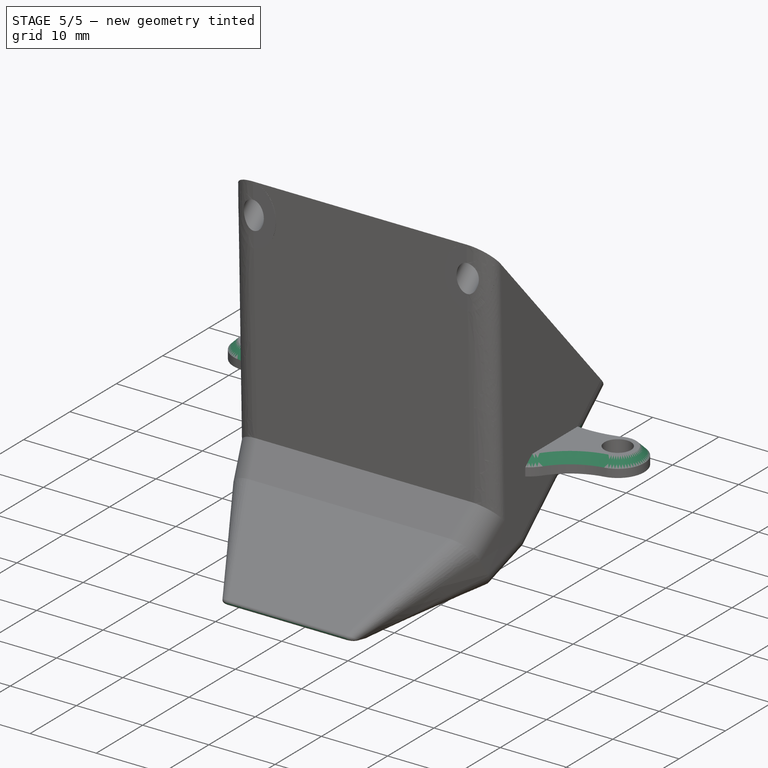
[diagram: stage 5 of 5 — iso view after this stage's code; geometry added in this stage tinted green]
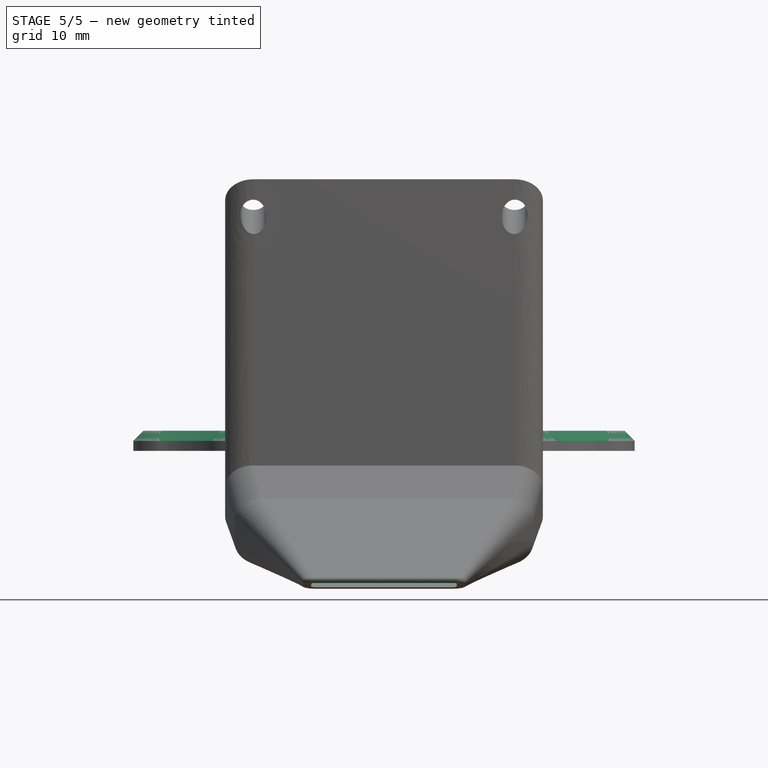
[diagram: stage 5 of 5 — front view after this stage's code; geometry added in this stage tinted green]
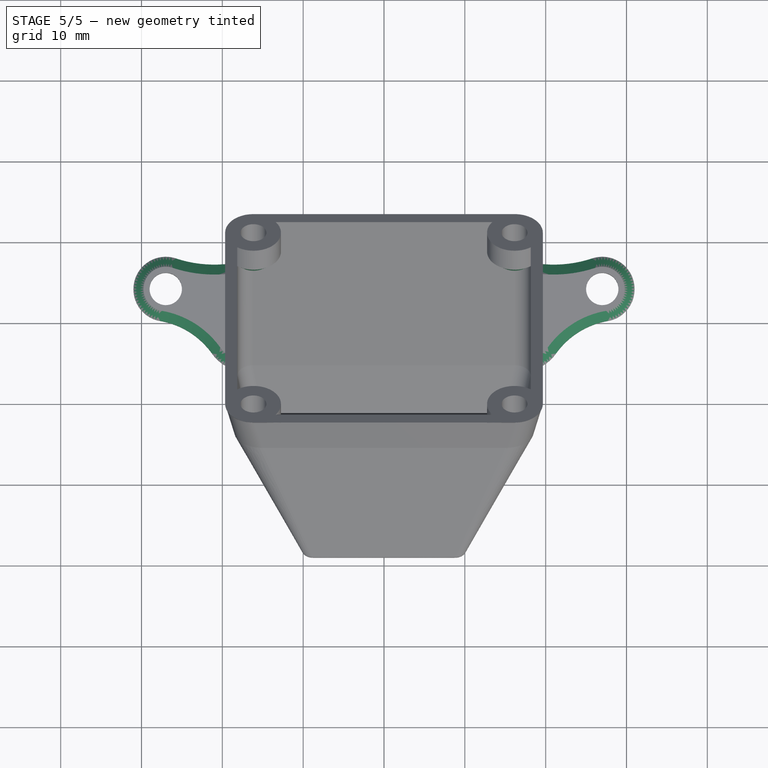
[diagram: stage 5 of 5 — top view after this stage's code; geometry added in this stage tinted green]
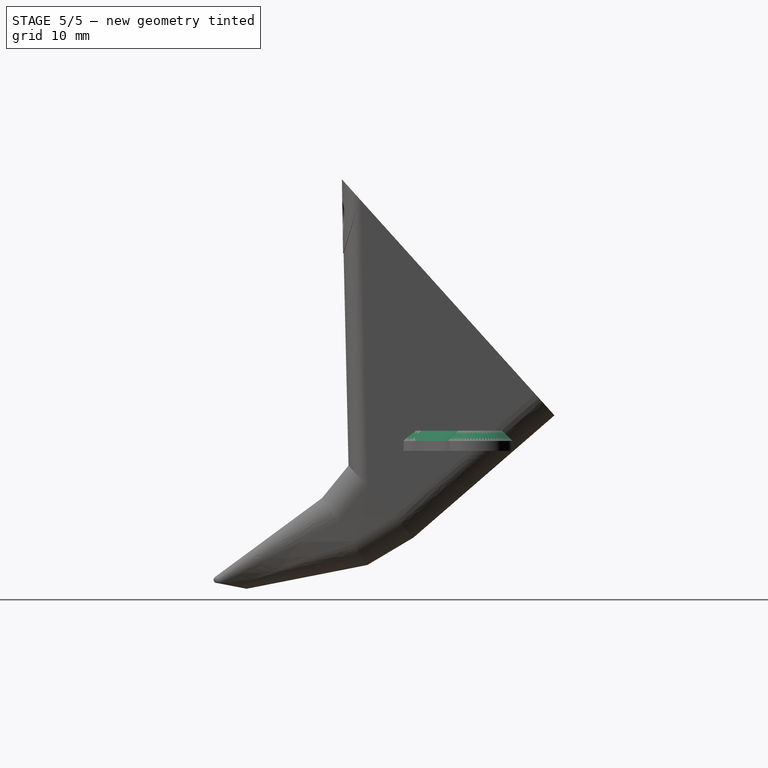
[diagram: stage 5 of 5 — right view after this stage's code; geometry added in this stage tinted green]
FEATURE [Part::MultiFuse] Fusion003
  Shapes = -> [Cut003,Cut004]
FEATURE [PartDesign::Chamfer] Chamfer
  Base = -> Fusion003 [Edge92,Edge198]
  Size = 1.25
FEATURE [PartDesign::Chamfer] Chamfer001
  Base = -> Chamfer [Edge173,Edge190]
  Size = 1.4
FEATURE [PartDesign::Fillet] Fillet
  Base = -> Chamfer001 [Edge214]
  Radius = 0.4
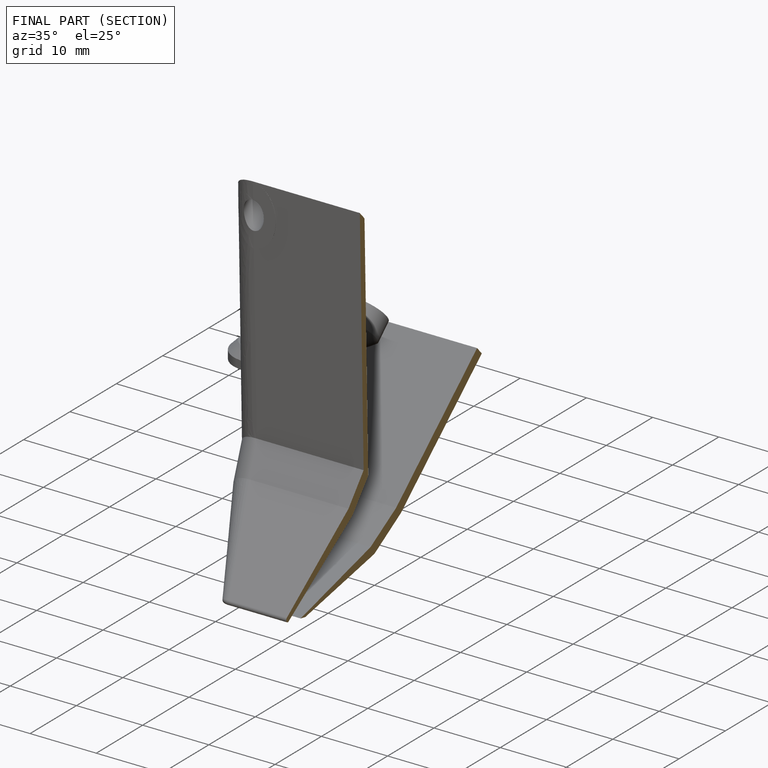
[diagram: finished part — half-section view (interior)]
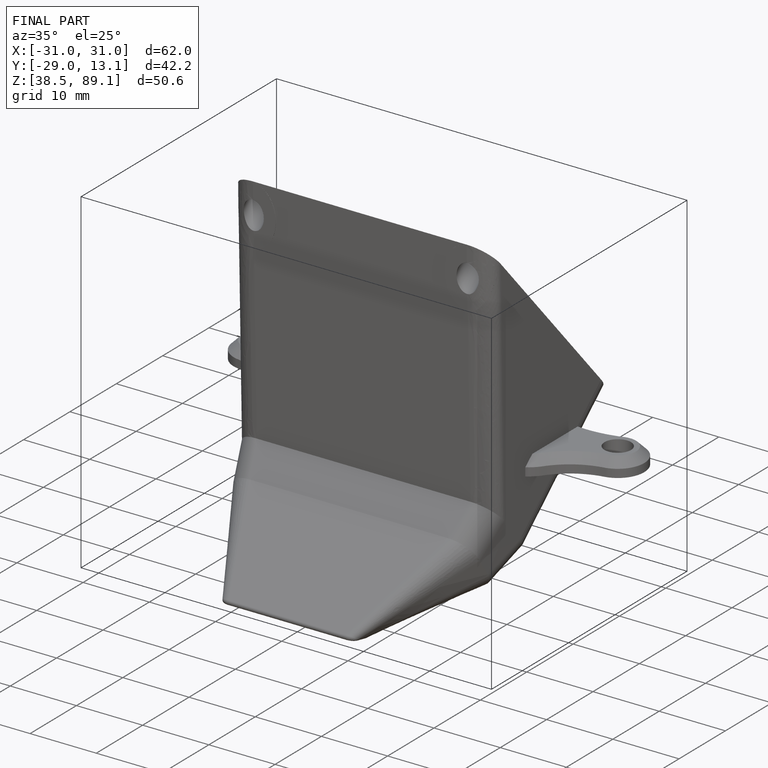
[diagram: finished part — iso view with bounding-box wireframe]
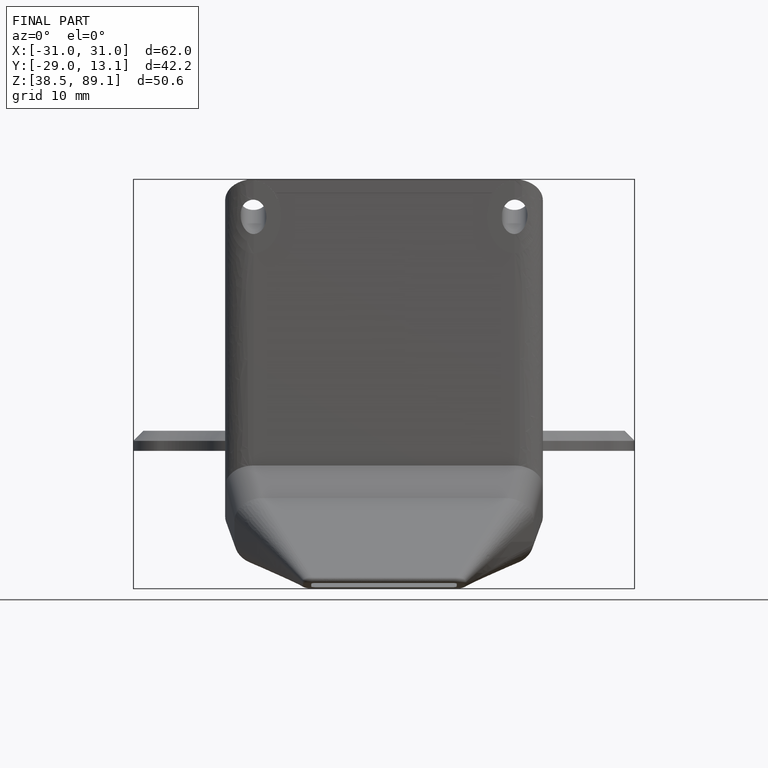
[diagram: finished part — front view with bounding-box wireframe]
